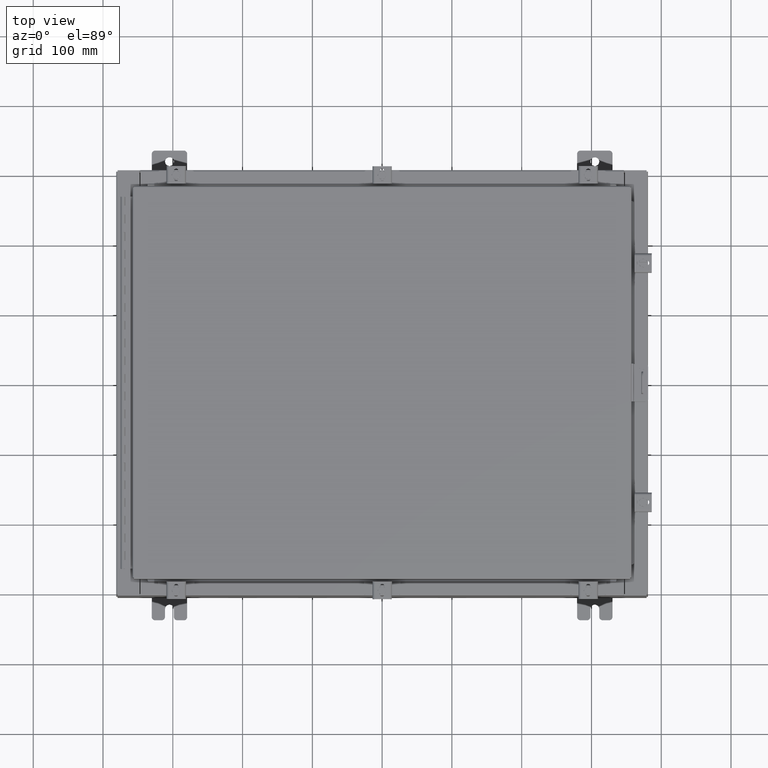
[diagram: clean part render]
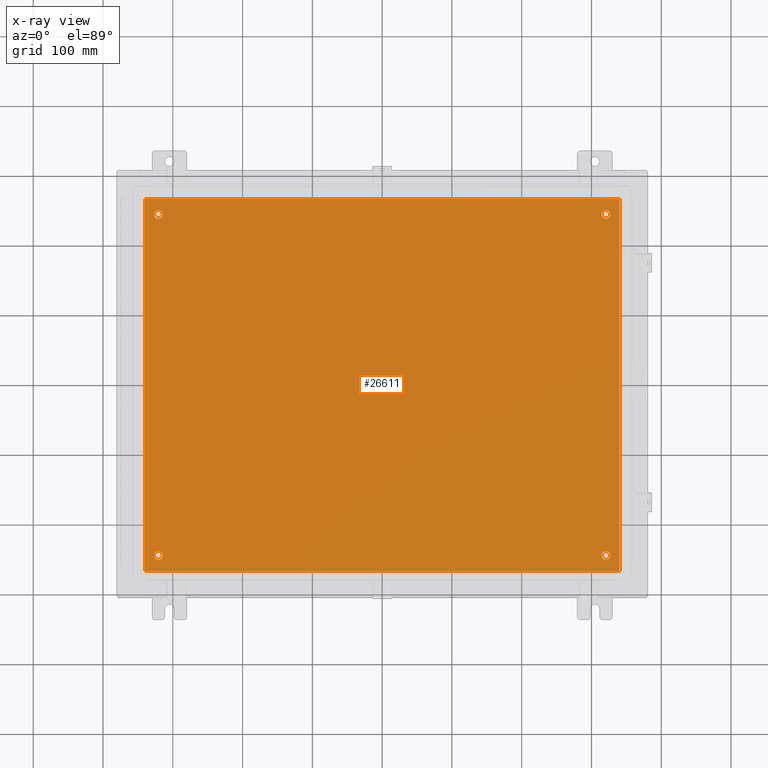
[diagram: x-ray — body ghosted, one internal face saturated and labeled with its STEP entity id]
A machine part, top view, then the same camera in x-ray: the body is ghosted and one INTERNAL B-rep face — a face not visible from any outside direction — is saturated and labeled: STEP entity #26611.
In plain terms, the highlighted planar face has unit normal (0, 0, -1).
Its self-contained STEP definition (entity closure, byte-faithful):
#63 = AXIS2_PLACEMENT_3D ( 'NONE', #17463, #2127, #19999 ) ;
#320 = FACE_OUTER_BOUND ( 'NONE', #8627, .T. ) ;
#505 = EDGE_LOOP ( 'NONE', ( #30114, #7654 ) ) ;
#705 = CARTESIAN_POINT ( 'NONE',  ( -12.37499999999999800, 9.625000000000001800, -0.1040000000000000400 ) ) ;
#820 = VERTEX_POINT ( 'NONE', #11209 ) ;
#1817 = CARTESIAN_POINT ( 'NONE',  ( -13.50000000000000000, 10.50000000000000200, -0.1040000000000000400 ) ) ;
#2090 = DIRECTION ( 'NONE',  ( -0.0000000000000000000, -0.0000000000000000000, 1.000000000000000000 ) ) ;
#2127 = DIRECTION ( 'NONE',  ( -0.0000000000000000000, -0.0000000000000000000, 1.000000000000000000 ) ) ;
#2433 = ORIENTED_EDGE ( 'NONE', *, *, #13882, .F. ) ;
#2978 = CARTESIAN_POINT ( 'NONE',  ( 13.38300000000000100, -10.50000000000000000, -0.1040000000000000400 ) ) ;
#3061 = AXIS2_PLACEMENT_3D ( 'NONE', #24415, #9132, #26974 ) ;
#3402 = EDGE_CURVE ( 'NONE', #4580, #23758, #20111, .T. ) ;
#3789 = AXIS2_PLACEMENT_3D ( 'NONE', #7813, #25651, #10379 ) ;
#4392 = DIRECTION ( 'NONE',  ( -1.000000000000000000, -0.0000000000000000000, -0.0000000000000000000 ) ) ;
#4406 = CARTESIAN_POINT ( 'NONE',  ( -13.49999999999999500, -10.50000000000000000, -0.1040000000000000400 ) ) ;
#4580 = VERTEX_POINT ( 'NONE', #14665 ) ;
#4691 = EDGE_CURVE ( 'NONE', #23758, #4580, #32321, .T. ) ;
#5135 = VERTEX_POINT ( 'NONE', #2978 ) ;
#5932 = CARTESIAN_POINT ( 'NONE',  ( -12.62499999999999800, -9.625000000000001800, -0.1040000000000000400 ) ) ;
#5969 = VECTOR ( 'NONE', #4392, 39.37007874015748100 ) ;
#6012 = CARTESIAN_POINT ( 'NONE',  ( -12.62499999999999800, 9.625000000000001800, -0.1040000000000000400 ) ) ;
#6021 = LINE ( 'NONE', #4406, #18816 ) ;
#6172 = ORIENTED_EDGE ( 'NONE', *, *, #17914, .F. ) ;
#6356 = DIRECTION ( 'NONE',  ( 0.0000000000000000000, 1.000000000000000000, 0.0000000000000000000 ) ) ;
#6524 = EDGE_LOOP ( 'NONE', ( #10230, #30389 ) ) ;
#6695 = EDGE_CURVE ( 'NONE', #820, #32933, #18321, .T. ) ;
#6887 = AXIS2_PLACEMENT_3D ( 'NONE', #17432, #2090, #19971 ) ;
#6932 = DIRECTION ( 'NONE',  ( 1.000000000000000000, 0.0000000000000000000, 0.0000000000000000000 ) ) ;
#7092 = FACE_BOUND ( 'NONE', #6524, .T. ) ;
#7101 = CARTESIAN_POINT ( 'NONE',  ( -12.37499999999999800, -9.625000000000001800, -0.1040000000000000400 ) ) ;
#7654 = ORIENTED_EDGE ( 'NONE', *, *, #26058, .T. ) ;
#7813 = CARTESIAN_POINT ( 'NONE',  ( 12.62499999999999800, -9.625000000000001800, -0.1040000000000000400 ) ) ;
#7934 = CIRCLE ( 'NONE', #18574, 0.2499999999999987000 ) ;
#8444 = ORIENTED_EDGE ( 'NONE', *, *, #21743, .T. ) ;
#8487 = DIRECTION ( 'NONE',  ( -1.000000000000000000, 0.0000000000000000000, 0.0000000000000000000 ) ) ;
#8591 = DIRECTION ( 'NONE',  ( -1.000000000000000000, 0.0000000000000000000, 0.0000000000000000000 ) ) ;
#8627 = EDGE_LOOP ( 'NONE', ( #13309, #28831, #6172, #2433 ) ) ;
#8929 = CARTESIAN_POINT ( 'NONE',  ( 13.38300000000000300, -10.50000000000000200, -0.1040000000000008600 ) ) ;
#8941 = CIRCLE ( 'NONE', #3061, 0.2499999999999987000 ) ;
#9132 = DIRECTION ( 'NONE',  ( -0.0000000000000000000, -0.0000000000000000000, 1.000000000000000000 ) ) ;
#9769 = EDGE_LOOP ( 'NONE', ( #24962, #8444 ) ) ;
#10230 = ORIENTED_EDGE ( 'NONE', *, *, #4691, .T. ) ;
#10379 = DIRECTION ( 'NONE',  ( -1.000000000000000000, 0.0000000000000000000, 0.0000000000000000000 ) ) ;
#10426 = AXIS2_PLACEMENT_3D ( 'NONE', #5932, #23803, #8487 ) ;
#11209 = CARTESIAN_POINT ( 'NONE',  ( -12.87499999999999600, -9.625000000000001800, -0.1040000000000000400 ) ) ;
#11336 = EDGE_CURVE ( 'NONE', #23303, #31511, #32763, .T. ) ;
#11389 = CIRCLE ( 'NONE', #21473, 0.2499999999999987000 ) ;
#11521 = CARTESIAN_POINT ( 'NONE',  ( 12.62499999999999800, -9.625000000000001800, -0.1040000000000000400 ) ) ;
#11603 = DIRECTION ( 'NONE',  ( -0.0000000000000000000, -0.0000000000000000000, 1.000000000000000000 ) ) ;
#11626 = DIRECTION ( 'NONE',  ( 0.0000000000000000000, 0.0000000000000000000, -1.000000000000000000 ) ) ;
#11804 = AXIS2_PLACEMENT_3D ( 'NONE', #26909, #11626, #29446 ) ;
#11884 = DIRECTION ( 'NONE',  ( 0.0000000000000000000, -1.000000000000000000, 0.0000000000000000000 ) ) ;
#12928 = CARTESIAN_POINT ( 'NONE',  ( 12.87499999999999600, 9.625000000000001800, -0.1040000000000000400 ) ) ;
#13309 = ORIENTED_EDGE ( 'NONE', *, *, #15478, .F. ) ;
#13882 = EDGE_CURVE ( 'NONE', #5135, #31794, #22929, .T. ) ;
#14090 = DIRECTION ( 'NONE',  ( -1.000000000000000000, 0.0000000000000000000, 0.0000000000000000000 ) ) ;
#14091 = EDGE_CURVE ( 'NONE', #18711, #19897, #30847, .T. ) ;
#14665 = CARTESIAN_POINT ( 'NONE',  ( 12.37499999999999800, -9.625000000000001800, -0.1040000000000000400 ) ) ;
#14979 = CARTESIAN_POINT ( 'NONE',  ( 12.37499999999999800, 9.625000000000001800, -0.1040000000000000400 ) ) ;
#15478 = EDGE_CURVE ( 'NONE', #22221, #5135, #6021, .T. ) ;
#16138 = VECTOR ( 'NONE', #6356, 39.37007874015748100 ) ;
#16191 = CARTESIAN_POINT ( 'NONE',  ( -13.38299999999999900, -10.50000000000000000, -0.1040000000000041300 ) ) ;
#16691 = PLANE ( 'NONE',  #11804 ) ;
#17266 = AXIS2_PLACEMENT_3D ( 'NONE', #11521, #29329, #14090 ) ;
#17432 = CARTESIAN_POINT ( 'NONE',  ( -12.62499999999999800, 9.625000000000001800, -0.1040000000000000400 ) ) ;
#17463 = CARTESIAN_POINT ( 'NONE',  ( 12.62499999999999800, 9.625000000000001800, -0.1040000000000000400 ) ) ;
#17893 = EDGE_CURVE ( 'NONE', #30164, #22221, #20396, .T. ) ;
#17914 = EDGE_CURVE ( 'NONE', #31794, #30164, #18771, .T. ) ;
#18321 = CIRCLE ( 'NONE', #10426, 0.2499999999999987000 ) ;
#18574 = AXIS2_PLACEMENT_3D ( 'NONE', #6012, #23890, #8591 ) ;
#18711 = VERTEX_POINT ( 'NONE', #12928 ) ;
#18771 = LINE ( 'NONE', #1817, #5969 ) ;
#18816 = VECTOR ( 'NONE', #6932, 39.37007874015748100 ) ;
#19771 = ORIENTED_EDGE ( 'NONE', *, *, #21108, .T. ) ;
#19897 = VERTEX_POINT ( 'NONE', #14979 ) ;
#19971 = DIRECTION ( 'NONE',  ( -1.000000000000000000, 0.0000000000000000000, 0.0000000000000000000 ) ) ;
#19999 = DIRECTION ( 'NONE',  ( -1.000000000000000000, 0.0000000000000000000, 0.0000000000000000000 ) ) ;
#20111 = CIRCLE ( 'NONE', #17266, 0.2499999999999987000 ) ;
#20141 = CARTESIAN_POINT ( 'NONE',  ( -13.38299999999999900, 10.50000000000000200, -0.1040000000000041300 ) ) ;
#20396 = LINE ( 'NONE', #24601, #26329 ) ;
#21108 = EDGE_CURVE ( 'NONE', #32933, #820, #11389, .T. ) ;
#21187 = CARTESIAN_POINT ( 'NONE',  ( 13.38300000000000400, 10.50000000000000200, -0.1040000000000000400 ) ) ;
#21473 = AXIS2_PLACEMENT_3D ( 'NONE', #26875, #11603, #29432 ) ;
#21507 = FACE_BOUND ( 'NONE', #505, .T. ) ;
#21743 = EDGE_CURVE ( 'NONE', #19897, #18711, #8941, .T. ) ;
#22167 = EDGE_LOOP ( 'NONE', ( #19771, #32957 ) ) ;
#22221 = VERTEX_POINT ( 'NONE', #16191 ) ;
#22929 = LINE ( 'NONE', #8929, #16138 ) ;
#23303 = VERTEX_POINT ( 'NONE', #705 ) ;
#23758 = VERTEX_POINT ( 'NONE', #30351 ) ;
#23803 = DIRECTION ( 'NONE',  ( -0.0000000000000000000, -0.0000000000000000000, 1.000000000000000000 ) ) ;
#23890 = DIRECTION ( 'NONE',  ( -0.0000000000000000000, -0.0000000000000000000, 1.000000000000000000 ) ) ;
#24415 = CARTESIAN_POINT ( 'NONE',  ( 12.62499999999999800, 9.625000000000001800, -0.1040000000000000400 ) ) ;
#24601 = CARTESIAN_POINT ( 'NONE',  ( -13.38299999999999900, 10.50000000000000400, -0.1040000000000041300 ) ) ;
#24962 = ORIENTED_EDGE ( 'NONE', *, *, #14091, .T. ) ;
#25651 = DIRECTION ( 'NONE',  ( -0.0000000000000000000, -0.0000000000000000000, 1.000000000000000000 ) ) ;
#26058 = EDGE_CURVE ( 'NONE', #31511, #23303, #7934, .T. ) ;
#26329 = VECTOR ( 'NONE', #11884, 39.37007874015748100 ) ;
#26611 = ADVANCED_FACE ( 'NONE', ( #27469, #7092, #29029, #21507, #320 ), #16691, .T. ) ;
#26875 = CARTESIAN_POINT ( 'NONE',  ( -12.62499999999999800, -9.625000000000001800, -0.1040000000000000400 ) ) ;
#26909 = CARTESIAN_POINT ( 'NONE',  ( 0.0000000000000000000, 0.0000000000000000000, -0.1040000000000000400 ) ) ;
#26974 = DIRECTION ( 'NONE',  ( -1.000000000000000000, 0.0000000000000000000, 0.0000000000000000000 ) ) ;
#27469 = FACE_BOUND ( 'NONE', #22167, .T. ) ;
#28831 = ORIENTED_EDGE ( 'NONE', *, *, #17893, .F. ) ;
#29029 = FACE_BOUND ( 'NONE', #9769, .T. ) ;
#29329 = DIRECTION ( 'NONE',  ( -0.0000000000000000000, -0.0000000000000000000, 1.000000000000000000 ) ) ;
#29432 = DIRECTION ( 'NONE',  ( -1.000000000000000000, 0.0000000000000000000, 0.0000000000000000000 ) ) ;
#29446 = DIRECTION ( 'NONE',  ( -1.000000000000000000, 0.0000000000000000000, -0.0000000000000000000 ) ) ;
#30114 = ORIENTED_EDGE ( 'NONE', *, *, #11336, .T. ) ;
#30164 = VERTEX_POINT ( 'NONE', #20141 ) ;
#30351 = CARTESIAN_POINT ( 'NONE',  ( 12.87499999999999600, -9.625000000000001800, -0.1040000000000000400 ) ) ;
#30389 = ORIENTED_EDGE ( 'NONE', *, *, #3402, .T. ) ;
#30847 = CIRCLE ( 'NONE', #63, 0.2499999999999987000 ) ;
#31511 = VERTEX_POINT ( 'NONE', #32630 ) ;
#31794 = VERTEX_POINT ( 'NONE', #21187 ) ;
#32321 = CIRCLE ( 'NONE', #3789, 0.2499999999999987000 ) ;
#32630 = CARTESIAN_POINT ( 'NONE',  ( -12.87499999999999600, 9.625000000000001800, -0.1040000000000000400 ) ) ;
#32763 = CIRCLE ( 'NONE', #6887, 0.2499999999999987000 ) ;
#32933 = VERTEX_POINT ( 'NONE', #7101 ) ;
#32957 = ORIENTED_EDGE ( 'NONE', *, *, #6695, .T. ) ;